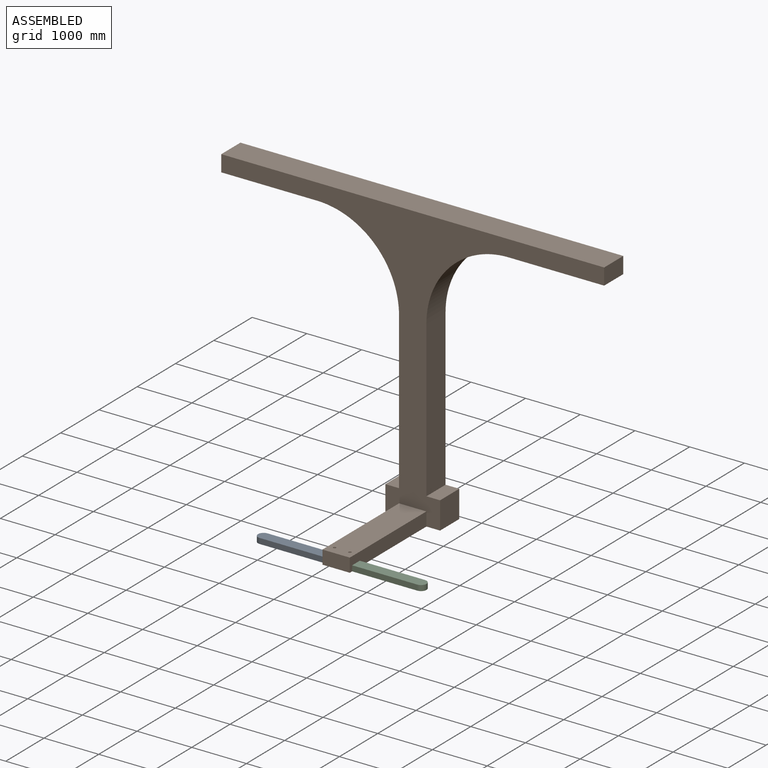
[diagram: assembled view]
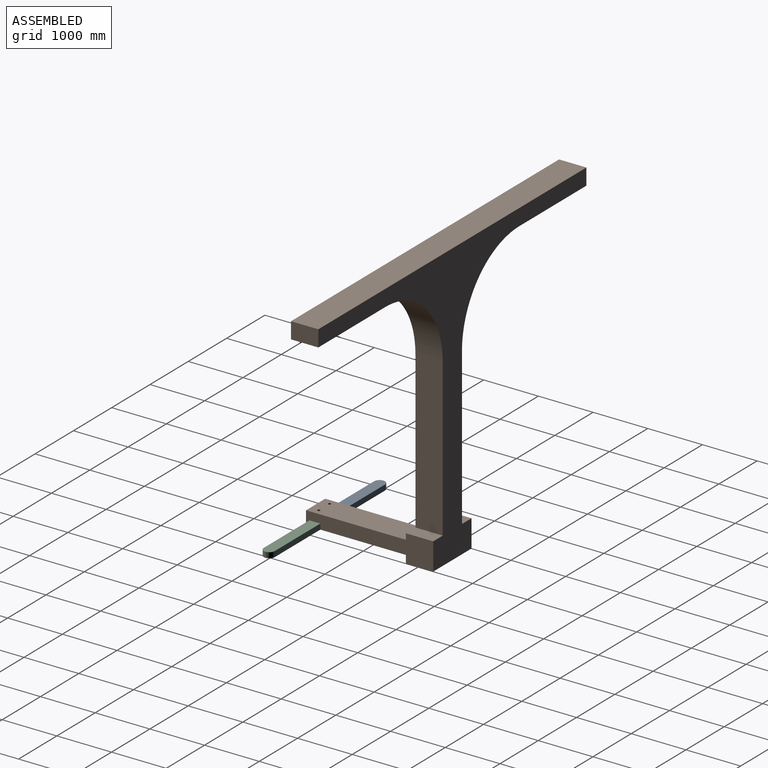
[diagram: assembled view, second angle]
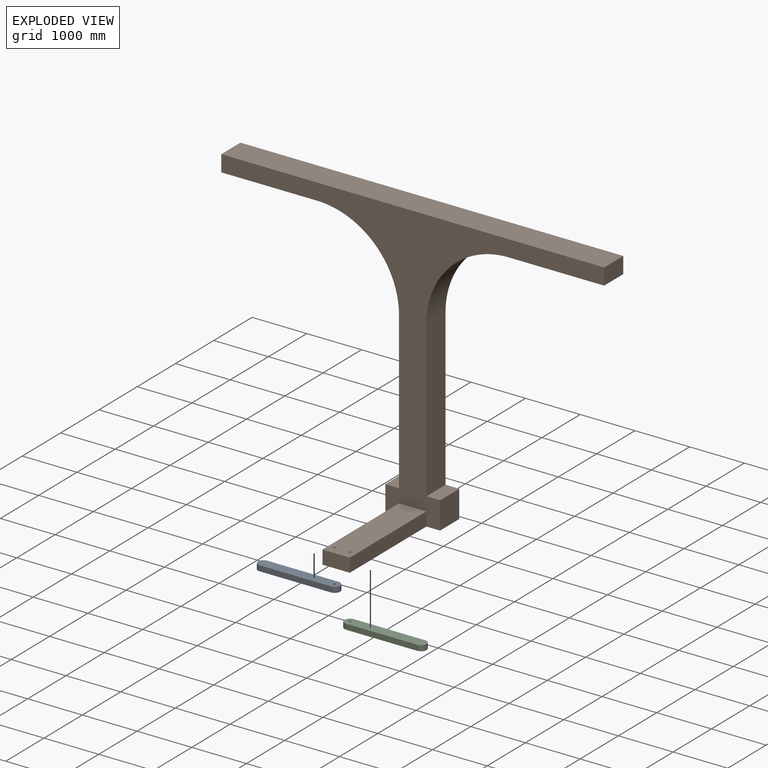
[diagram: exploded view]
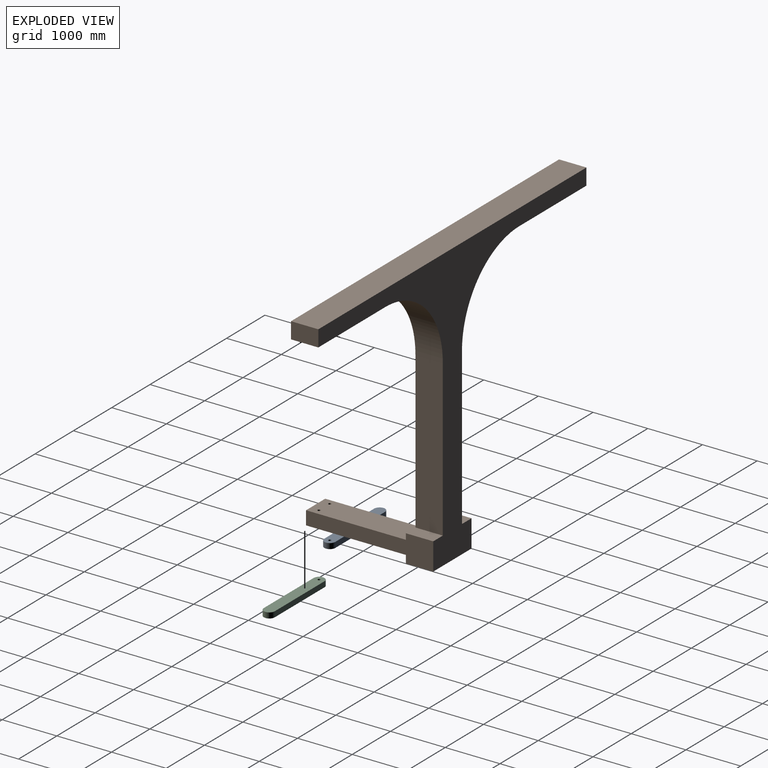
[diagram: exploded view, second angle]
ASSEMBLY  parts=3 mates=3
PART A: 7 faces, bbox 200x1500x100 mm
  f0: cylinder r=100mm len=200mm, axis (0,0,1), area 31415.9mm2, adj f1,f3,f4,f5
  f1: plane 1300x100mm, normal (-1,0,0), area 130000mm2, adj f0,f2,f4,f5
  f2: cylinder r=100mm len=200mm, axis (0,0,1), area 31415.9mm2, adj f1,f3,f4,f5
  f3: plane 1300x100mm, normal (1,0,0), area 130000mm2, adj f0,f2,f4,f5
  f4: plane 1500x200mm, normal (0,0,-1), area 289452.4mm2, adj f0,f1,f2,f3,f6
  f5: plane 1500x200mm, normal (0,0,1), area 289452.4mm2, adj f0,f1,f2,f3,f6
  f6: cylinder r=25mm len=100mm, axis (0,0,1), area 15708mm2, adj f4,f5
PART B: 22 faces, bbox 7000x2500x5150 mm
  f0: plane 2850x500mm, normal (1,0,0), area 1425000mm2, adj f1,f13,f14,f15
  f1: cylinder r=1500mm len=1500mm, axis (0,1,0), area 1178097.2mm2, adj f0,f2,f14,f15
  f2: plane 1750x500mm, normal (0,0,-1), area 875000mm2, adj f1,f3,f14,f15
  f3: plane 500x300mm, normal (1,0,0), area 150000mm2, adj f2,f4,f14,f15
  f4: plane 7000x500mm, normal (0,0,1), area 3500000mm2, adj f3,f5,f14,f15
  f5: plane 500x300mm, normal (-1,0,0), area 150000mm2, adj f4,f6,f14,f15
  f6: plane 1750x500mm, normal (0,0,-1), area 875000mm2, adj f5,f7,f14,f15
  f7: cylinder r=1500mm len=1500mm, axis (0,1,0), area 1178097.2mm2, adj f6,f8,f14,f15
  f8: plane 2850x500mm, normal (-1,0,0), area 1425000mm2, adj f7,f9,f14,f15
  f9: plane 500x250mm, normal (0,0,1), area 125000mm2, adj f8,f10,f14,f15
  f10: plane 500x500mm, normal (-1,0,0), area 250000mm2, adj f9,f11,f14,f15
  f11: plane 2500x1000mm, normal (0,0,-1), area 1496073mm2, adj f10,f12,f14,f15,f16,f17,f18,f20
  f12: plane 500x500mm, normal (1,0,0), area 250000mm2, adj f11,f13,f14,f15
  f13: plane 500x250mm, normal (0,0,1), area 125000mm2, adj f0,f12,f14,f15
  f14: plane 7000x5150mm, normal (0,-1,0), area 5615708.3mm2, adj f0,f1,f2,f3,f4,f5,f6,f7
  f15: plane 7000x5150mm, normal (0,1,0), area 5740708.3mm2, adj f0,f1,f2,f3,f4,f5,f6,f7
  f16: plane 2000x250mm, normal (-1,0,0), area 500000mm2, adj f11,f14,f18,f19
  f17: plane 2000x250mm, normal (1,0,0), area 500000mm2, adj f11,f14,f18,f19
  f18: plane 500x250mm, normal (0,-1,0), area 125000mm2, adj f11,f16,f17,f19
  f19: plane 2000x500mm, normal (0,0,1), area 996073mm2, adj f14,f16,f17,f18,f20,f21
  f20: cylinder r=25mm len=250mm, axis (0,0,1), area 39269.9mm2, adj f11,f19
  f21: cylinder r=25mm len=250mm, axis (0,0,1), area 39269.9mm2, adj f11,f19
PART C: same geometry as A
PLACE A rot(axis=(0,0,-1),90deg) t=(-4147.11,-5558.36,-6338.13)mm
PLACE B t=(-1907.11,-3469.49,5999.03)mm fixed
PLACE C rot(axis=(0,0,1),90deg) t=(-2567.11,-5558.36,-6338.13)mm
MATE cylindrical C.f0 <-> B.f21  axis (0,0,1) through (-3217.11,-5558.36,-6288.13)mm
MATE planar C.f4 <-> B.f11  axis (0,0,-1) through (-2562.71,-5558.36,-6388.13)mm
MATE cylindrical B.f20 <-> A.f0  axis (0,0,-1) through (-3497.11,-5558.36,-6388.13)mm
